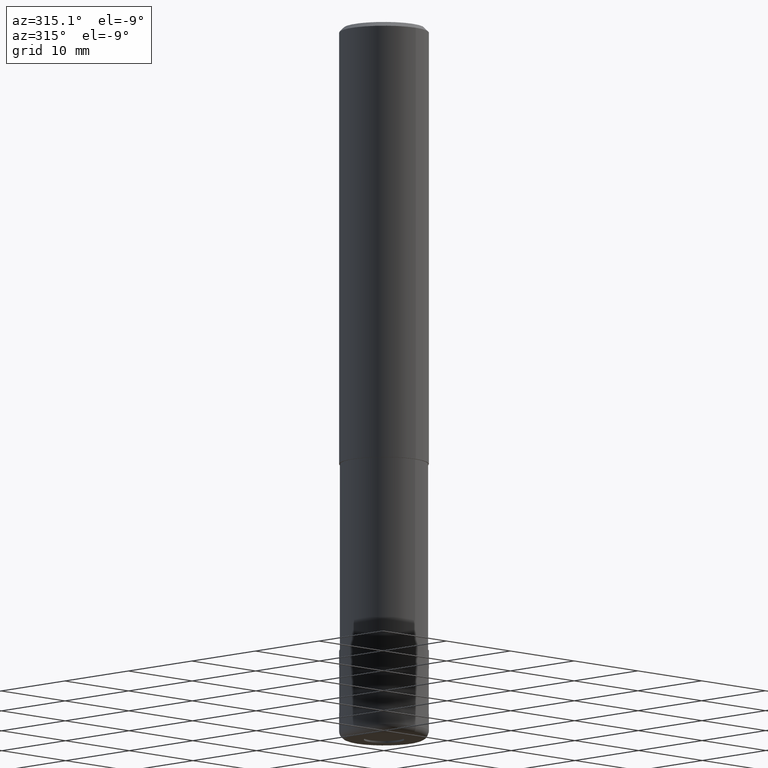
[diagram: clean part render]
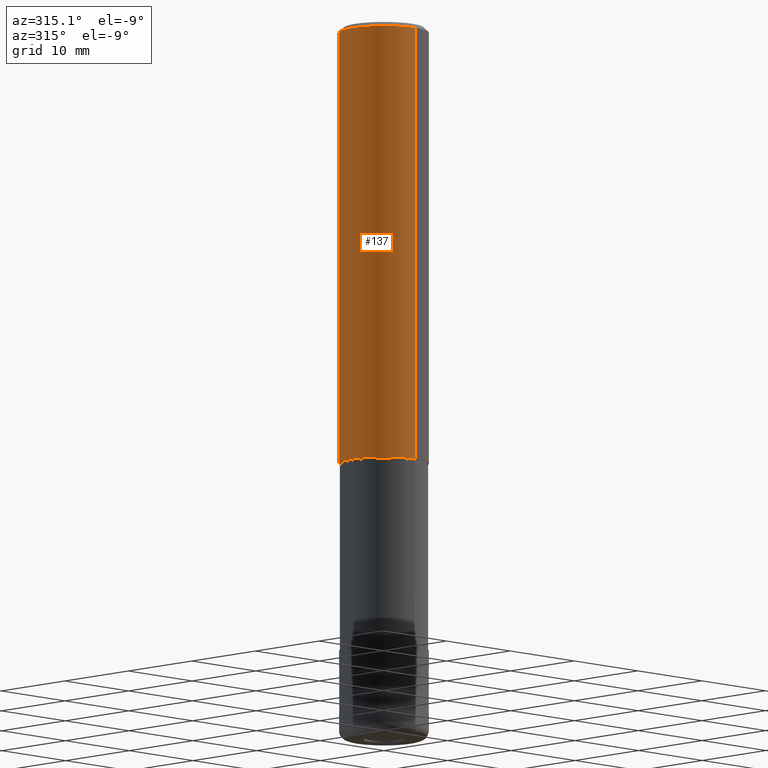
[diagram: same view with one face highlighted and labeled with its STEP entity id]
A machine part, auxiliary view. The second image highlights one B-rep face of the part: STEP entity #137.
In plain terms, the highlighted cylindrical surface (partial cylindrical patch) has radius 5 mm, axis along (-0, -0, 1).
Its self-contained STEP definition (entity closure, byte-faithful):
#121=VERTEX_POINT('',#308);
#137=ADVANCED_FACE('',(#327),#328,.T.);
#183=EDGE_CURVE('',#253,#269,#381,.T.);
#203=EDGE_CURVE('',#121,#209,#407,.T.);
#209=VERTEX_POINT('',#413);
#253=VERTEX_POINT('',#463);
#257=EDGE_CURVE('',#253,#121,#467,.T.);
#267=EDGE_CURVE('',#209,#269,#477,.T.);
#269=VERTEX_POINT('',#479);
#308=CARTESIAN_POINT('',(6.12303176911189E-016,-5.0,-0.5));
#327=FACE_OUTER_BOUND('',#534,.T.);
#328=CYLINDRICAL_SURFACE('',#535,5.0);
#381=CIRCLE('',#603,5.0);
#407=CIRCLE('',#636,5.0);
#413=CARTESIAN_POINT('',(0.0,5.0,-0.5));
#463=CARTESIAN_POINT('',(6.12303176911189E-016,-5.0,-49.0));
#467=LINE('',#710,#711);
#477=LINE('',#725,#726);
#479=CARTESIAN_POINT('',(0.0,5.0,-49.0));
#534=EDGE_LOOP('',(#782,#783,#784,#785));
#535=AXIS2_PLACEMENT_3D('',#786,#787,#788);
#603=AXIS2_PLACEMENT_3D('',#867,#868,#869);
#636=AXIS2_PLACEMENT_3D('',#905,#906,#907);
#710=CARTESIAN_POINT('',(6.12303176911189E-016,-5.0,-24.75));
#711=VECTOR('',#976,1.0);
#725=CARTESIAN_POINT('',(-6.12303176911189E-016,5.0,-24.75));
#726=VECTOR('',#981,1.0);
#782=ORIENTED_EDGE('',*,*,#267,.T.);
#783=ORIENTED_EDGE('',*,*,#183,.F.);
#784=ORIENTED_EDGE('',*,*,#257,.T.);
#785=ORIENTED_EDGE('',*,*,#203,.T.);
#786=CARTESIAN_POINT('',(0.0,0.0,-24.75));
#787=DIRECTION('',(-0.0,-0.0,1.0));
#788=DIRECTION('',(0.0,1.0,0.0));
#867=CARTESIAN_POINT('',(0.0,0.0,-49.0));
#868=DIRECTION('',(0.0,0.0,-1.0));
#869=DIRECTION('',(0.0,1.0,0.0));
#905=CARTESIAN_POINT('',(0.0,0.0,-0.5));
#906=DIRECTION('',(0.0,0.0,-1.0));
#907=DIRECTION('',(0.0,1.0,0.0));
#976=DIRECTION('',(-0.0,-0.0,1.0));
#981=DIRECTION('',(0.0,0.0,-1.0));